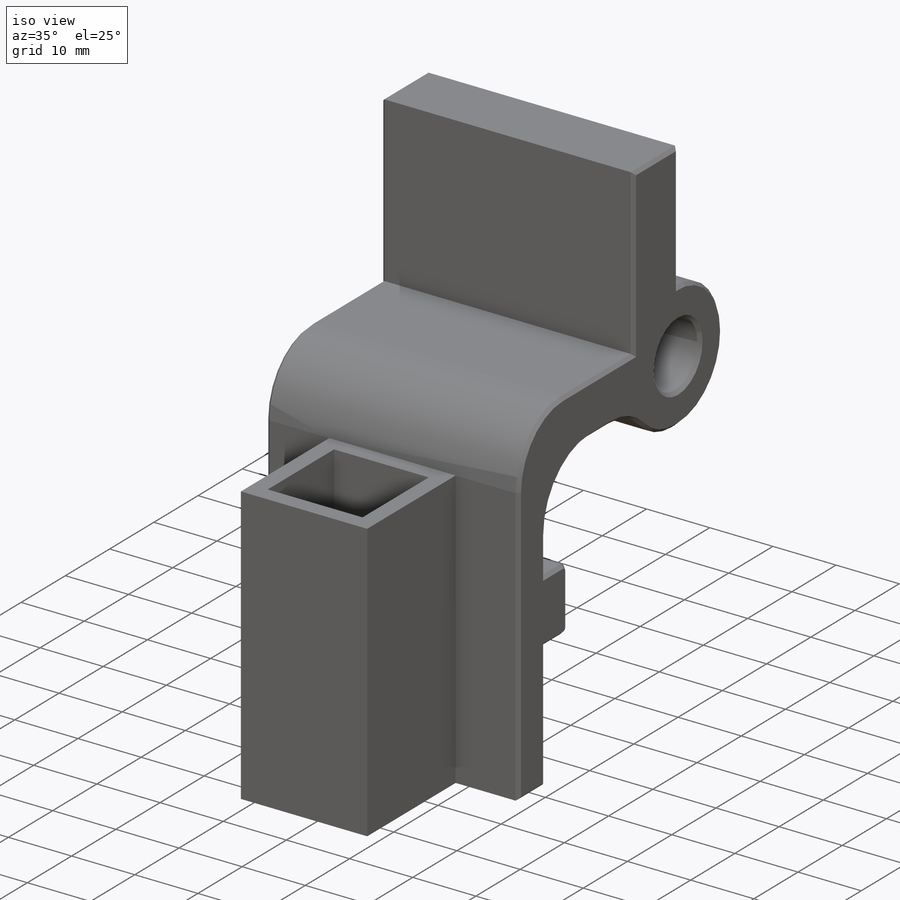
[diagram: iso view]
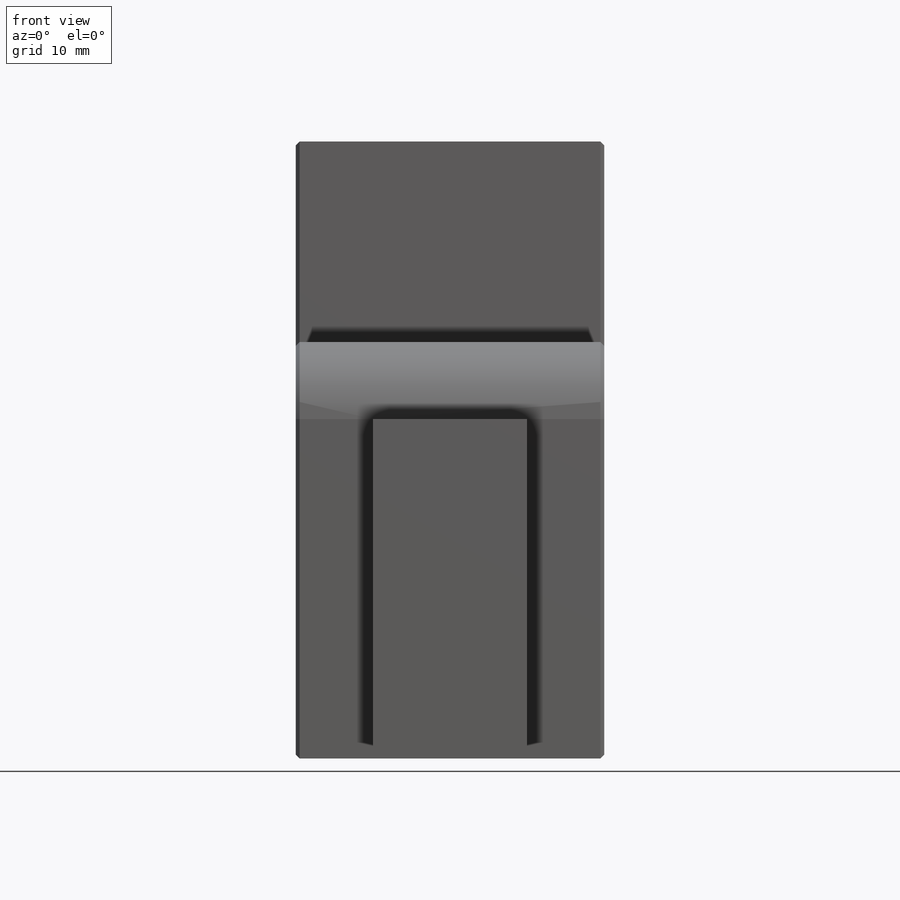
[diagram: front view]
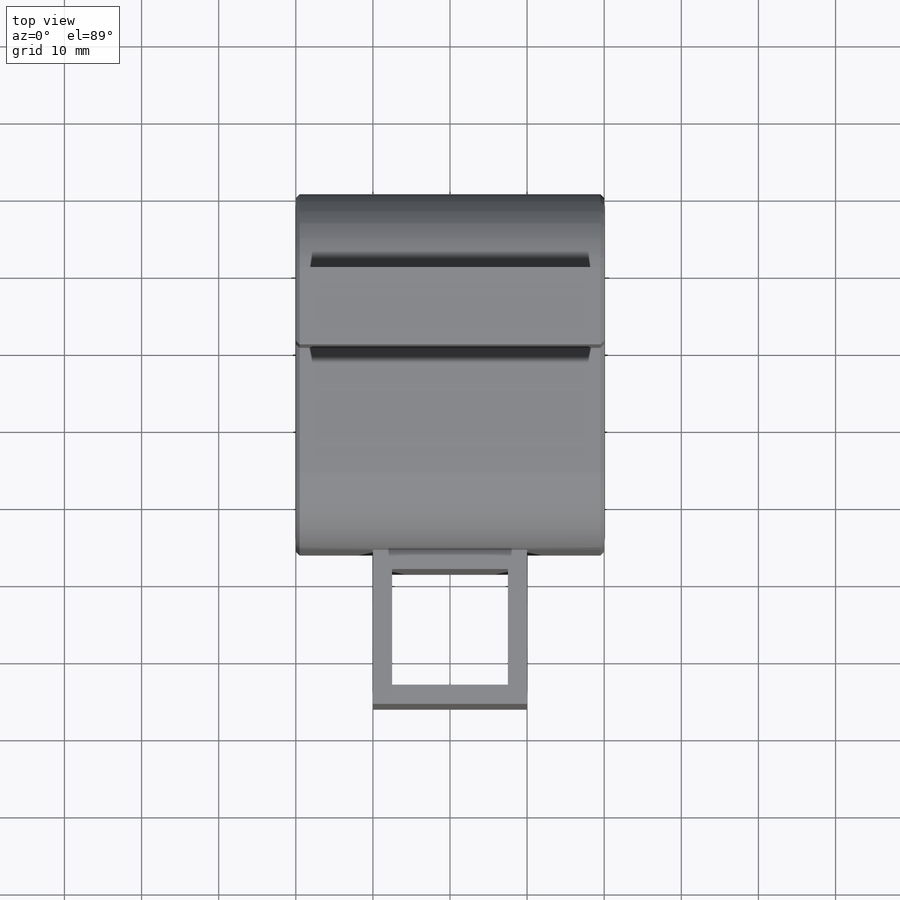
[diagram: top view]
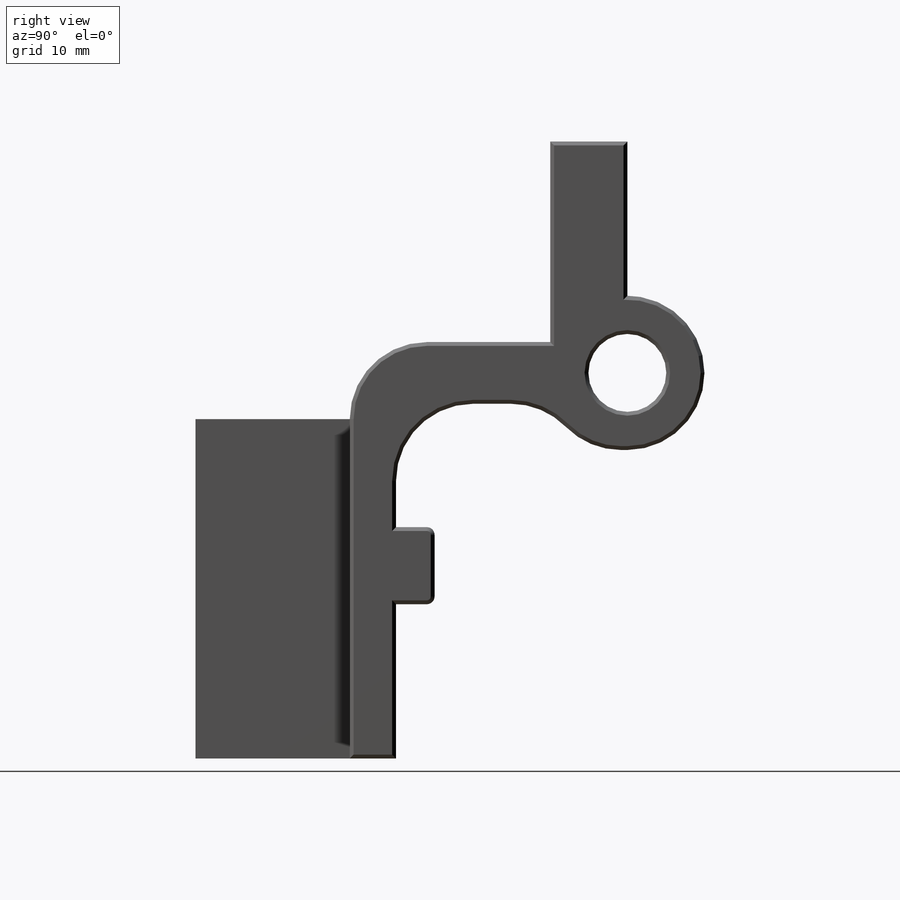
[diagram: right view]
SOLIDWORKS PART (.sldprt)
format: sldprt  version: not decoded by parser v0  size: 346,112 bytes
history: native  units: mm
features: sketch x10, fillet x6, extrude x5, cut_extrude x5, material x1, chamfer x1 (+13 scaffold rows collapsed)
feature tree (41):
  scaffold x13  (default folders/planes/origin — collapsed)
  material  "Material <not specified>"
  sketch  "Sketch1"  dims[D1=40.0mm D2=60.0mm]
  extrude  "Boss-Extrude1"  Depth=6mm
  sketch  "Sketch2"  dims[D1=20.0mm]
  extrude  "Boss-Extrude2"  Depth=40mm
  fillet  "Fillet1"  Radius=10mm
  sketch  "Sketch3"  dims[D1=10.1mm]
  cut_extrude  "Cut-Extrude1"  [1 undecoded]
  sketch  "Sketch4"  dims[D1=20.0mm]
  cut_extrude  "Cut-Extrude2"  Depth=6mm
  sketch  "Sketch5"  dims[D1=6.0mm D2=20.0mm]
  cut_extrude  "Cut-Extrude3"  Depth=6mm
  fillet  "Fillet4"  Radius=10mm
  fillet  "Fillet5"  Radius=10mm
  sketch  "Sketch9"
  cut_extrude  "Cut-Extrude6"  Depth=20mm
  sketch  "Sketch10"
  extrude  "Boss-Extrude4"  Depth=20mm
  fillet  "Fillet7"  Radius=10mm
  fillet  "Fillet9"  Radius=10mm
  sketch  "Sketch11"  dims[D1=10.0mm D2=10.0mm]
  extrude  "Boss-Extrude5"  Depth=20mm
  sketch  "Sketch12"  dims[D1=2.5mm D2=2.5mm D3=2.5mm D4=2.5mm]
  cut_extrude  "Cut-Extrude7"  [1 undecoded]
  sketch  "Sketch13"  dims[D1=10.0mm D2=6.0mm]
  extrude  "Boss-Extrude6"  Depth=5mm
  fillet  "Fillet10"  Radius=1mm
  chamfer  "Chamfer1"  Distance=0.5mm Angle=45deg
decode coverage: 23 of 27 modeling features carry decoded parameters
note: 2 parameter values undecoded
note: suppression state not decoded; provenance and decode notes live in map.json
